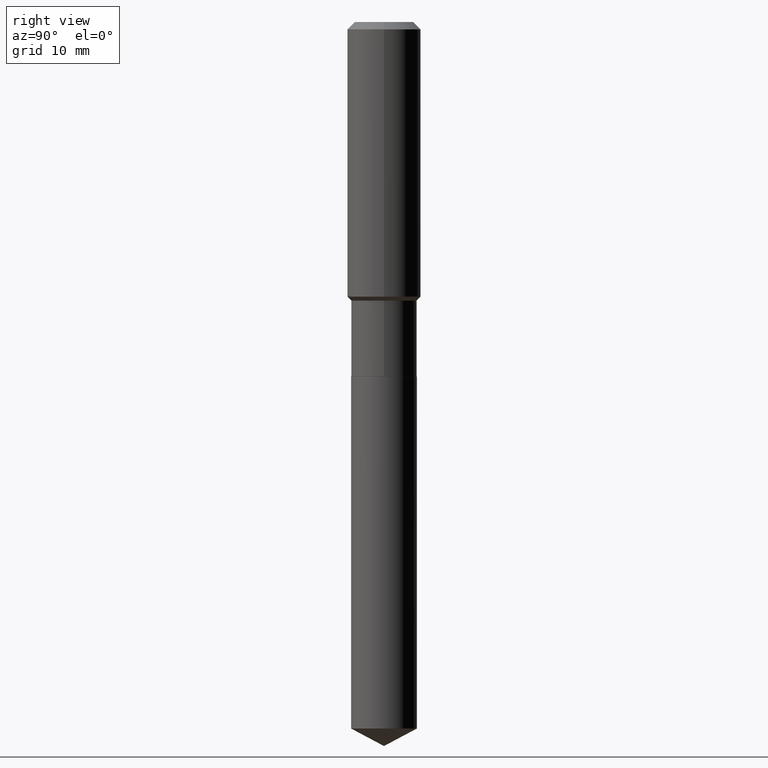
[diagram: clean part render]
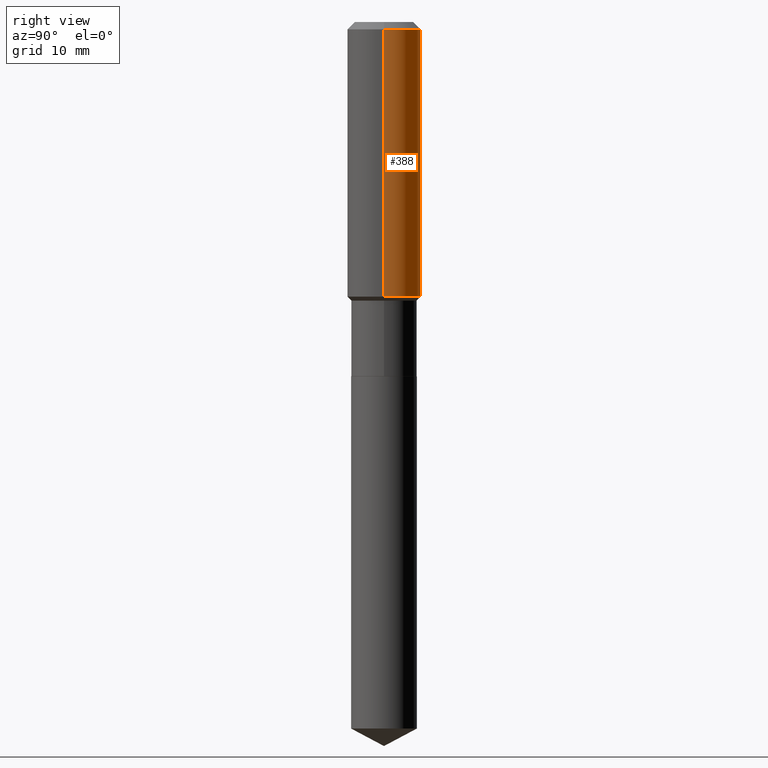
[diagram: same view with one face highlighted and labeled with its STEP entity id]
A machine part, right view. The second image highlights one B-rep face of the part: STEP entity #388.
In plain terms, the highlighted cylindrical surface (partial cylindrical patch) has radius 5.9995 mm, axis along (-0, 0, 1).
Its self-contained STEP definition (entity closure, byte-faithful):
#2 = AXIS2_PLACEMENT_3D ( 'NONE', #451, #412, #225 ) ;
#19 = CARTESIAN_POINT ( 'NONE',  ( -0.2362000000000001043, 1.678301941865357380E-15, -1.161852468318209317E-29 ) ) ;
#26 = VERTEX_POINT ( 'NONE', #415 ) ;
#29 = DIRECTION ( 'NONE',  ( -2.445468806185136597E-29, 3.491481338843145583E-15, 1.000000000000000000 ) ) ;
#41 = EDGE_CURVE ( 'NONE', #142, #136, #338, .T. ) ;
#52 = EDGE_LOOP ( 'NONE', ( #282, #301, #192, #185 ) ) ;
#57 = DIRECTION ( 'NONE',  ( -2.445468806185136877E-29, 3.491481338843145188E-15, 1.000000000000000000 ) ) ;
#91 = LINE ( 'NONE', #19, #121 ) ;
#104 = FACE_OUTER_BOUND ( 'NONE', #52, .T. ) ;
#108 = CYLINDRICAL_SURFACE ( 'NONE', #2, 0.2362000000000001043 ) ;
#121 = VECTOR ( 'NONE', #57, 39.37007874015748143 ) ;
#136 = VERTEX_POINT ( 'NONE', #151 ) ;
#142 = VERTEX_POINT ( 'NONE', #154 ) ;
#151 = CARTESIAN_POINT ( 'NONE',  ( -0.2361999999999999933, -1.480947490180168921E-15, -0.04724000000000027483 ) ) ;
#154 = CARTESIAN_POINT ( 'NONE',  ( 0.2361999999999999933, -1.814313362916447440E-15, -0.04724000000000027483 ) ) ;
#185 = ORIENTED_EDGE ( 'NONE', *, *, #440, .F. ) ;
#186 = CARTESIAN_POINT ( 'NONE',  ( 1.155239464041865331E-30, -1.649375784469511612E-16, -0.04724000000000027483 ) ) ;
#187 = AXIS2_PLACEMENT_3D ( 'NONE', #433, #29, #303 ) ;
#192 = ORIENTED_EDGE ( 'NONE', *, *, #41, .F. ) ;
#223 = VERTEX_POINT ( 'NONE', #277 ) ;
#225 = DIRECTION ( 'NONE',  ( 1.000000000000000000, -6.982962677686266711E-15, 4.876176775795935793E-29 ) ) ;
#228 = EDGE_CURVE ( 'NONE', #26, #223, #402, .T. ) ;
#247 = AXIS2_PLACEMENT_3D ( 'NONE', #186, #342, #489 ) ;
#277 = CARTESIAN_POINT ( 'NONE',  ( -0.2362000000000002153, -4.475259343778742532E-15, -1.762449999999999850 ) ) ;
#282 = ORIENTED_EDGE ( 'NONE', *, *, #228, .T. ) ;
#301 = ORIENTED_EDGE ( 'NONE', *, *, #355, .T. ) ;
#303 = DIRECTION ( 'NONE',  ( 1.000000000000000000, -6.982962677686266711E-15, 0.000000000000000000 ) ) ;
#338 = CIRCLE ( 'NONE', #247, 0.2361999999999999933 ) ;
#342 = DIRECTION ( 'NONE',  ( -2.445468806185136597E-29, 3.491481338843145583E-15, 1.000000000000000000 ) ) ;
#355 = EDGE_CURVE ( 'NONE', #223, #136, #91, .T. ) ;
#381 = LINE ( 'NONE', #385, #410 ) ;
#385 = CARTESIAN_POINT ( 'NONE',  ( 0.2362000000000001043, -1.649375784469496920E-15, 1.151752954443000508E-29 ) ) ;
#388 = ADVANCED_FACE ( 'NONE', ( #104 ), #108, .T. ) ;
#402 = CIRCLE ( 'NONE', #187, 0.2362000000000002153 ) ;
#410 = VECTOR ( 'NONE', #488, 39.37007874015748143 ) ;
#412 = DIRECTION ( 'NONE',  ( -2.445468806185136597E-29, 3.491481338843145583E-15, 1.000000000000000000 ) ) ;
#415 = CARTESIAN_POINT ( 'NONE',  ( 0.2362000000000002153, -7.802937070113599396E-15, -1.762449999999999850 ) ) ;
#433 = CARTESIAN_POINT ( 'NONE',  ( 4.310016497460993523E-29, -6.153561285644102082E-15, -1.762449999999999850 ) ) ;
#440 = EDGE_CURVE ( 'NONE', #26, #142, #381, .T. ) ;
#451 = CARTESIAN_POINT ( 'NONE',  ( 0.000000000000000000, 0.000000000000000000, 0.000000000000000000 ) ) ;
#488 = DIRECTION ( 'NONE',  ( -2.445468806185136877E-29, 3.491481338843145188E-15, 1.000000000000000000 ) ) ;
#489 = DIRECTION ( 'NONE',  ( 1.000000000000000000, -6.982962677686266711E-15, 0.000000000000000000 ) ) ;